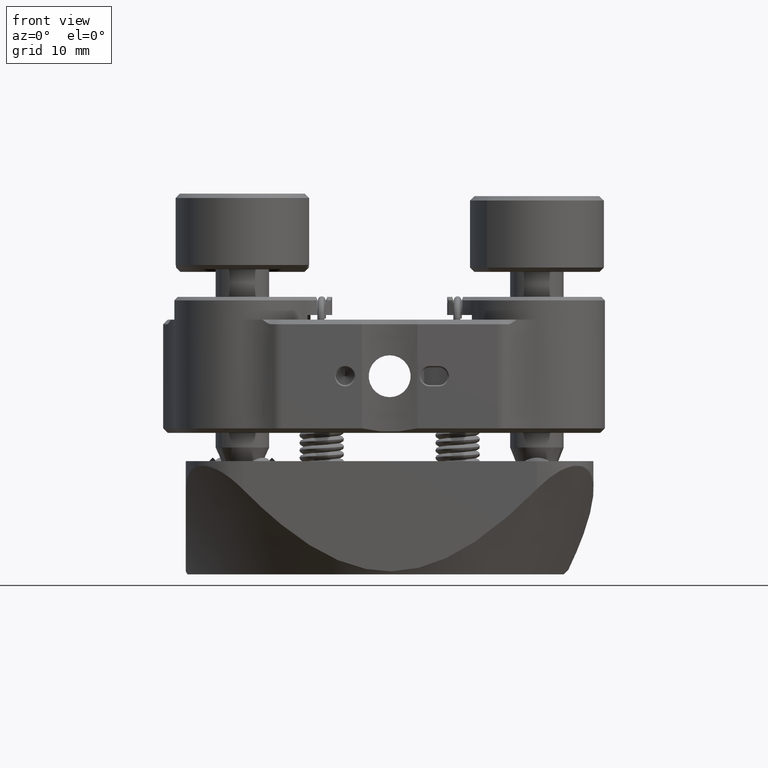
[diagram: clean part render]
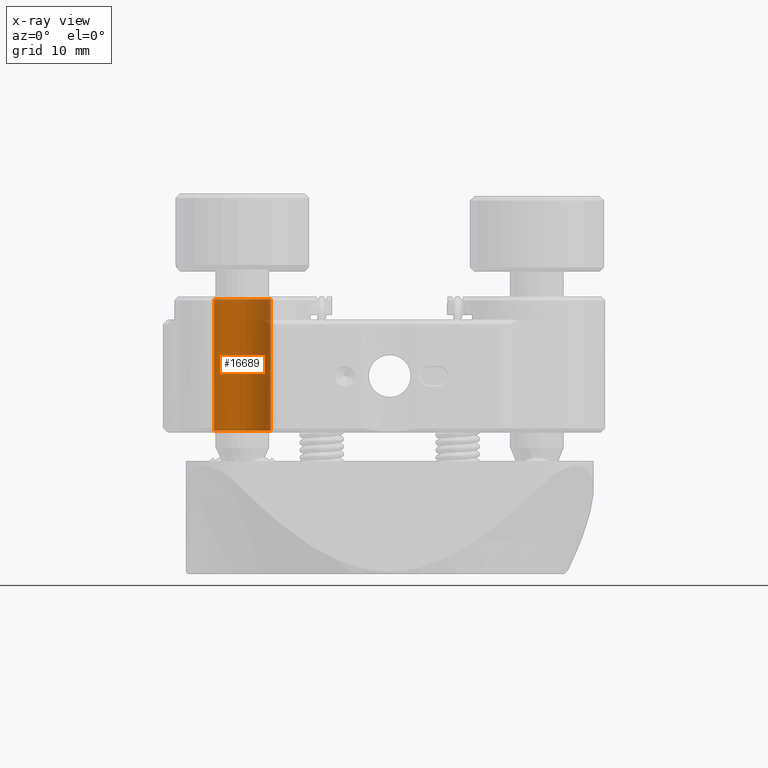
[diagram: x-ray — body ghosted, one internal face saturated and labeled with its STEP entity id]
A machine part, front view, then the same camera in x-ray: the body is ghosted and one INTERNAL B-rep face — a face not visible from any outside direction — is saturated and labeled: STEP entity #16689.
In plain terms, the highlighted cylindrical surface (edge-blend (fillet) strip) has radius 3.175 mm, axis along (-0, -0, -1).
Its self-contained STEP definition (entity closure, byte-faithful):
#70 = DIRECTION ( 'NONE',  ( -1.000000000000000000, 0.000000000000000000, 0.000000000000000000 ) ) ;
#206 = ORIENTED_EDGE ( 'NONE', *, *, #15426, .T. ) ;
#1388 = VECTOR ( 'NONE', #3355, 1000.000000000000000 ) ;
#2597 = DIRECTION ( 'NONE',  ( -0.000000000000000000, -0.000000000000000000, -1.000000000000000000 ) ) ;
#3355 = DIRECTION ( 'NONE',  ( -0.000000000000000000, -0.000000000000000000, -1.000000000000000000 ) ) ;
#3614 = EDGE_CURVE ( 'NONE', #9394, #15278, #7773, .T. ) ;
#3625 = DIRECTION ( 'NONE',  ( -0.000000000000000000, -0.000000000000000000, -1.000000000000000000 ) ) ;
#4020 = CARTESIAN_POINT ( 'NONE',  ( 5.686151733613646009, 45.13409739724845338, 25.93070909685327052 ) ) ;
#4341 = DIRECTION ( 'NONE',  ( -0.000000000000000000, -0.000000000000000000, -1.000000000000000000 ) ) ;
#4418 = VERTEX_POINT ( 'NONE', #6296 ) ;
#4453 = CARTESIAN_POINT ( 'NONE',  ( 12.03615173361364654, 45.13409739724845338, 40.91670909685328894 ) ) ;
#4595 = VECTOR ( 'NONE', #4341, 1000.000000000000000 ) ;
#4656 = VERTEX_POINT ( 'NONE', #4020 ) ;
#4934 = CARTESIAN_POINT ( 'NONE',  ( 8.861151733613645831, 45.13409739724845338, 40.91670909685328894 ) ) ;
#6046 = AXIS2_PLACEMENT_3D ( 'NONE', #15221, #19839, #13510 ) ;
#6296 = CARTESIAN_POINT ( 'NONE',  ( 5.686151733613646009, 45.13409739724845338, 40.66270909685326984 ) ) ;
#7773 = LINE ( 'NONE', #4453, #4595 ) ;
#8249 = CYLINDRICAL_SURFACE ( 'NONE', #13087, 3.175000000000000711 ) ;
#8867 = EDGE_CURVE ( 'NONE', #9394, #4418, #11202, .T. ) ;
#9051 = ORIENTED_EDGE ( 'NONE', *, *, #15920, .T. ) ;
#9394 = VERTEX_POINT ( 'NONE', #16187 ) ;
#9417 = CARTESIAN_POINT ( 'NONE',  ( 5.686151733613646009, 45.13409739724845338, 40.91670909685328894 ) ) ;
#10596 = CARTESIAN_POINT ( 'NONE',  ( 12.03615173361364654, 45.13409739724845338, 25.93070909685327052 ) ) ;
#11202 = CIRCLE ( 'NONE', #6046, 3.175000000000000711 ) ;
#13087 = AXIS2_PLACEMENT_3D ( 'NONE', #4934, #3625, #70 ) ;
#13297 = ORIENTED_EDGE ( 'NONE', *, *, #3614, .F. ) ;
#13510 = DIRECTION ( 'NONE',  ( -1.000000000000000000, 0.000000000000000000, 0.000000000000000000 ) ) ;
#13765 = CIRCLE ( 'NONE', #17897, 3.175000000000000711 ) ;
#14089 = CARTESIAN_POINT ( 'NONE',  ( 8.861151733613645831, 45.13409739724845338, 25.93070909685327052 ) ) ;
#15221 = CARTESIAN_POINT ( 'NONE',  ( 8.861151733613645831, 45.13409739724845338, 40.66270909685326984 ) ) ;
#15278 = VERTEX_POINT ( 'NONE', #10596 ) ;
#15426 = EDGE_CURVE ( 'NONE', #4418, #4656, #19888, .T. ) ;
#15697 = DIRECTION ( 'NONE',  ( -1.000000000000000000, 0.000000000000000000, 0.000000000000000000 ) ) ;
#15920 = EDGE_CURVE ( 'NONE', #4656, #15278, #13765, .T. ) ;
#16187 = CARTESIAN_POINT ( 'NONE',  ( 12.03615173361364654, 45.13409739724845338, 40.66270909685326984 ) ) ;
#16405 = FACE_OUTER_BOUND ( 'NONE', #17792, .T. ) ;
#16689 = ADVANCED_FACE ( 'NONE', ( #16405 ), #8249, .F. ) ;
#17792 = EDGE_LOOP ( 'NONE', ( #13297, #20706, #206, #9051 ) ) ;
#17897 = AXIS2_PLACEMENT_3D ( 'NONE', #14089, #2597, #15697 ) ;
#19839 = DIRECTION ( 'NONE',  ( 0.000000000000000000, 0.000000000000000000, 1.000000000000000000 ) ) ;
#19888 = LINE ( 'NONE', #9417, #1388 ) ;
#20706 = ORIENTED_EDGE ( 'NONE', *, *, #8867, .T. ) ;